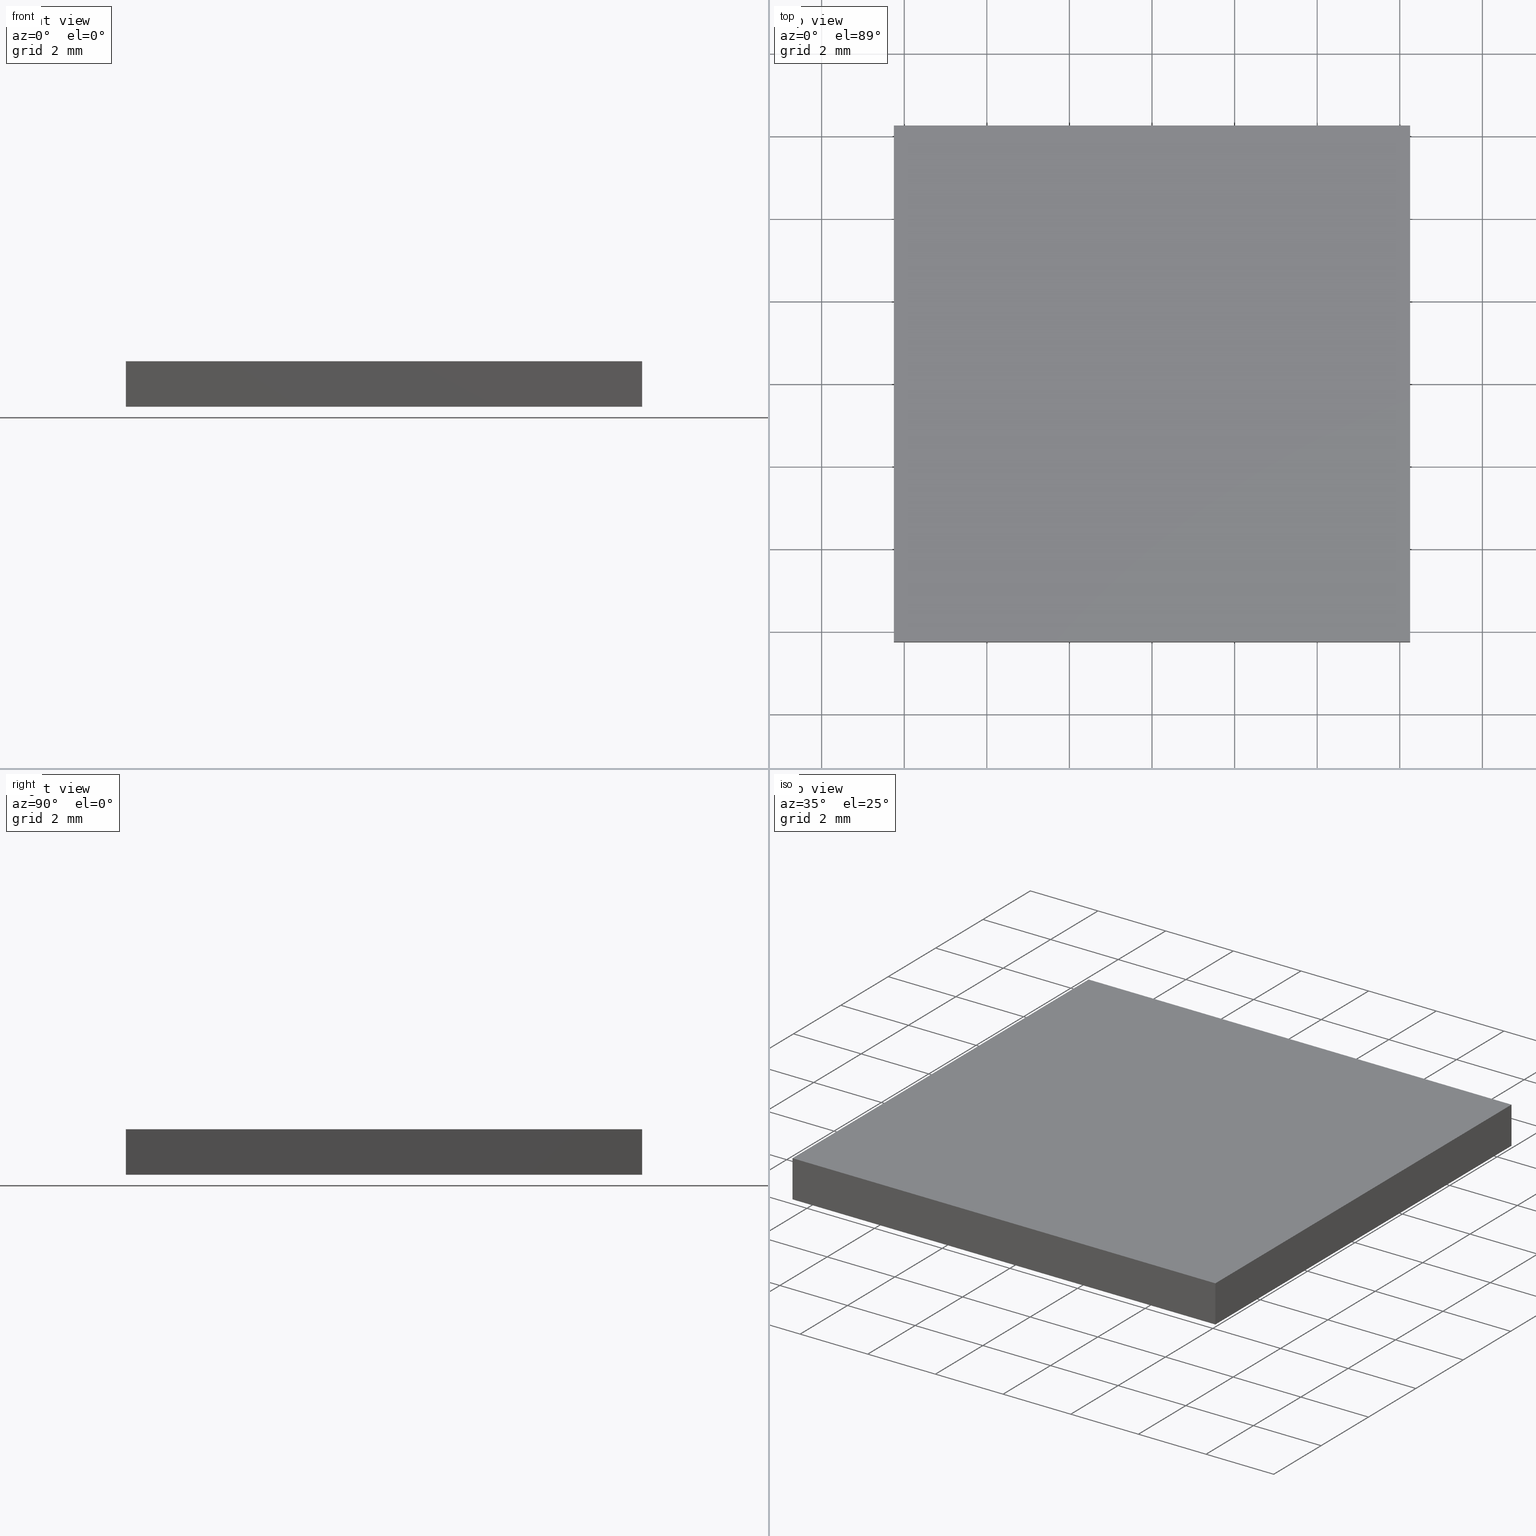
[diagram: canonical four-view strip — front | top / right | iso, engineering-drawing reading convention]
A machine part, canonical four-view strip (front | top / right | iso — engineering-drawing reading convention). The complete STEP part file that produces these views, byte-faithful:
ISO-10303-21;
HEADER;
FILE_DESCRIPTION (( 'STEP AP203' ),
    '1' );
FILE_NAME ('348501.STEP',
    '2019-07-31T06:59:30',
    ( '' ),
    ( '' ),
    'SwSTEP 2.0',
    'SolidWorks 2016',
    '' );
FILE_SCHEMA (( 'CONFIG_CONTROL_DESIGN' ));
ENDSEC;

DATA;
#1 = FACE_OUTER_BOUND ( 'NONE', #276, .T. ) ;
#2 = VECTOR ( 'NONE', #17, 1000.000000000000000 ) ;
#3 = AXIS2_PLACEMENT_3D ( 'NONE', #179, #279, #209 ) ;
#4 = CC_DESIGN_DATE_AND_TIME_ASSIGNMENT ( #244, #163, ( #200 ) ) ;
#5 = APPROVAL_PERSON_ORGANIZATION ( #270, #192, #220 ) ;
#6 = CC_DESIGN_DATE_AND_TIME_ASSIGNMENT ( #52, #41, ( #212 ) ) ;
#7 = ORIENTED_EDGE ( 'NONE', *, *, #288, .T. ) ;
#8 = APPROVAL_DATE_TIME ( #183, #192 ) ;
#9 = EDGE_CURVE ( 'NONE', #221, #224, #269, .T. ) ;
#10 = APPROVAL_DATE_TIME ( #96, #248 ) ;
#11 = VECTOR ( 'NONE', #130, 1000.000000000000000 ) ;
#12 = DIRECTION ( 'NONE',  ( -1.000000000000000000, 0.0000000000000000000, -0.0000000000000000000 ) ) ;
#13 = DIRECTION ( 'NONE',  ( -1.000000000000000000, 0.0000000000000000000, -0.0000000000000000000 ) ) ;
#14 = DIRECTION ( 'NONE',  ( 1.000000000000000000, 0.0000000000000000000, 0.0000000000000000000 ) ) ;
#15 = PERSON_AND_ORGANIZATION ( #256, #304 ) ;
#16 = DIRECTION ( 'NONE',  ( 1.000000000000000000, 0.0000000000000000000, 0.0000000000000000000 ) ) ;
#17 = DIRECTION ( 'NONE',  ( 1.000000000000000000, 0.0000000000000000000, 0.0000000000000000000 ) ) ;
#18 = CARTESIAN_POINT ( 'NONE',  ( 6.250000000000001800, -6.249999999999999100, 0.0000000000000000000 ) ) ;
#19 = CALENDAR_DATE ( 2019, 31, 7 ) ;
#20 = PERSON_AND_ORGANIZATION_ROLE ( 'creator' ) ;
#21 = ORIENTED_EDGE ( 'NONE', *, *, #288, .F. ) ;
#22 = MECHANICAL_CONTEXT ( 'NONE', #114, 'mechanical' ) ;
#23 = CC_DESIGN_SECURITY_CLASSIFICATION ( #200, ( #129 ) ) ;
#24 = APPLICATION_PROTOCOL_DEFINITION ( 'international standard', 'config_control_design', 1994, #162 ) ;
#25 = LINE ( 'NONE', #102, #214 ) ;
#26 = CALENDAR_DATE ( 2019, 31, 7 ) ;
#27 = LOCAL_TIME ( 14, 59, 30.00000000000000000, #43 ) ;
#28 = APPROVAL ( #93, 'δָ��' ) ;
#29 = DIRECTION ( 'NONE',  ( 0.0000000000000000000, 1.000000000000000000, 0.0000000000000000000 ) ) ;
#30 = VERTEX_POINT ( 'NONE', #274 ) ;
#31 = DIRECTION ( 'NONE',  ( -0.0000000000000000000, -0.0000000000000000000, -1.000000000000000000 ) ) ;
#32 = SHAPE_DEFINITION_REPRESENTATION ( #242, #42 ) ;
#33 = CC_DESIGN_PERSON_AND_ORGANIZATION_ASSIGNMENT ( #196, #264, ( #129 ) ) ;
#34 = FACE_OUTER_BOUND ( 'NONE', #72, .T. ) ;
#35 = PRODUCT ( '348501', '348501', '', ( #239 ) ) ;
#36 = CARTESIAN_POINT ( 'NONE',  ( -6.249999999999998200, 6.250000000000000900, 0.0000000000000000000 ) ) ;
#37 = PRODUCT_DEFINITION_FORMATION_WITH_SPECIFIED_SOURCE ( '�κ�', '', #131, .NOT_KNOWN. ) ;
#38 = LOCAL_TIME ( 14, 59, 30.00000000000000000, #261 ) ;
#39 = APPROVAL_ROLE ( '' ) ;
#40 = ORIENTED_EDGE ( 'NONE', *, *, #222, .F. ) ;
#41 = DATE_TIME_ROLE ( 'creation_date' ) ;
#42 = ADVANCED_BREP_SHAPE_REPRESENTATION ( '348501', ( #66, #228 ), #140 ) ;
#43 = COORDINATED_UNIVERSAL_TIME_OFFSET ( 8, 0, .AHEAD. ) ;
#44 = APPLICATION_PROTOCOL_DEFINITION ( 'international standard', 'config_control_design', 1994, #112 ) ;
#45 = EDGE_CURVE ( 'NONE', #91, #224, #117, .T. ) ;
#46 = EDGE_LOOP ( 'NONE', ( #149, #207, #247, #236 ) ) ;
#47 = PRODUCT_RELATED_PRODUCT_CATEGORY ( 'detail', '', ( #35 ) ) ;
#48 = LOCAL_TIME ( 14, 59, 30.00000000000000000, #59 ) ;
#49 = LOCAL_TIME ( 14, 59, 30.00000000000000000, #249 ) ;
#50 = ORIENTED_EDGE ( 'NONE', *, *, #9, .T. ) ;
#51 = CARTESIAN_POINT ( 'NONE',  ( -6.249999999999998200, 6.250000000000000900, 1.100000000000000100 ) ) ;
#52 = DATE_AND_TIME ( #134, #73 ) ;
#53 = VECTOR ( 'NONE', #280, 1000.000000000000000 ) ;
#54 = CLOSED_SHELL ( 'NONE', ( #197, #80, #125, #171, #315, #175 ) ) ;
#55 = CARTESIAN_POINT ( 'NONE',  ( -6.249999999999998200, -6.249999999999999100, 0.0000000000000000000 ) ) ;
#56 = CC_DESIGN_PERSON_AND_ORGANIZATION_ASSIGNMENT ( #15, #218, ( #37 ) ) ;
#57 = DIRECTION ( 'NONE',  ( -0.0000000000000000000, -0.0000000000000000000, -1.000000000000000000 ) ) ;
#58 = DIRECTION ( 'NONE',  ( 0.0000000000000000000, 0.0000000000000000000, -1.000000000000000000 ) ) ;
#59 = COORDINATED_UNIVERSAL_TIME_OFFSET ( 8, 0, .AHEAD. ) ;
#60 = DESIGN_CONTEXT ( 'detailed design', #112, 'design' ) ;
#61 = PLANE ( 'NONE',  #298 ) ;
#62 = VECTOR ( 'NONE', #57, 1000.000000000000000 ) ;
#63 = EDGE_CURVE ( 'NONE', #224, #133, #25, .T. ) ;
#64 = CARTESIAN_POINT ( 'NONE',  ( -6.249999999999998200, -6.249999999999999100, 1.100000000000000100 ) ) ;
#65 = APPROVAL_ROLE ( '' ) ;
#66 = MANIFOLD_SOLID_BREP ( '͹̨-����1', #54 ) ;
#67 = PERSON_AND_ORGANIZATION ( #256, #304 ) ;
#68 = VECTOR ( 'NONE', #31, 1000.000000000000000 ) ;
#69 = DATE_TIME_ROLE ( 'classification_date' ) ;
#70 = VERTEX_POINT ( 'NONE', #51 ) ;
#71 = CC_DESIGN_DATE_AND_TIME_ASSIGNMENT ( #230, #165, ( #104 ) ) ;
#72 = EDGE_LOOP ( 'NONE', ( #123, #103, #146, #190 ) ) ;
#73 = LOCAL_TIME ( 14, 59, 30.00000000000000000, #308 ) ;
#74 = VECTOR ( 'NONE', #186, 1000.000000000000000 ) ;
#75 = ORIENTED_EDGE ( 'NONE', *, *, #9, .F. ) ;
#76 = PRODUCT_RELATED_PRODUCT_CATEGORY ( 'detail', '', ( #131 ) ) ;
#77 = APPROVAL_PERSON_ORGANIZATION ( #240, #100, #65 ) ;
#78 = ORIENTED_EDGE ( 'NONE', *, *, #195, .F. ) ;
#79 = FACE_OUTER_BOUND ( 'NONE', #46, .T. ) ;
#80 = ADVANCED_FACE ( 'NONE', ( #136 ), #204, .F. ) ;
#81 = LINE ( 'NONE', #303, #11 ) ;
#82 = ORIENTED_EDGE ( 'NONE', *, *, #45, .T. ) ;
#83 = CARTESIAN_POINT ( 'NONE',  ( 6.250000000000001800, -6.249999999999999100, 1.100000000000000100 ) ) ;
#84 = CARTESIAN_POINT ( 'NONE',  ( -6.249999999999998200, -6.249999999999999100, 1.100000000000000100 ) ) ;
#85 = APPROVAL_DATE_TIME ( #99, #147 ) ;
#86 = CARTESIAN_POINT ( 'NONE',  ( -6.249999999999998200, -6.249999999999999100, 1.100000000000000100 ) ) ;
#87 = CARTESIAN_POINT ( 'NONE',  ( -6.249999999999998200, 6.250000000000000900, 1.100000000000000100 ) ) ;
#88 = VECTOR ( 'NONE', #150, 1000.000000000000000 ) ;
#89 = DIRECTION ( 'NONE',  ( -0.0000000000000000000, -1.000000000000000000, -0.0000000000000000000 ) ) ;
#90 = PERSON_AND_ORGANIZATION ( #256, #304 ) ;
#91 = VERTEX_POINT ( 'NONE', #127 ) ;
#92 = CC_DESIGN_PERSON_AND_ORGANIZATION_ASSIGNMENT ( #216, #135, ( #131 ) ) ;
#93 = APPROVAL_STATUS ( 'not_yet_approved' ) ;
#94 = PERSON_AND_ORGANIZATION_ROLE ( 'design_supplier' ) ;
#95 = APPROVAL_PERSON_ORGANIZATION ( #297, #151, #263 ) ;
#96 = DATE_AND_TIME ( #111, #38 ) ;
#97 = VECTOR ( 'NONE', #29, 1000.000000000000000 ) ;
#98 = DESIGN_CONTEXT ( 'detailed design', #162, 'design' ) ;
#99 = DATE_AND_TIME ( #294, #48 ) ;
#100 = APPROVAL ( #191, 'δָ��' ) ;
#101 = LOCAL_TIME ( 14, 59, 30.00000000000000000, #265 ) ;
#102 = CARTESIAN_POINT ( 'NONE',  ( -6.249999999999998200, 6.250000000000000900, 0.0000000000000000000 ) ) ;
#103 = ORIENTED_EDGE ( 'NONE', *, *, #189, .F. ) ;
#104 = PRODUCT_DEFINITION ( 'δ֪', '', #37, #98 ) ;
#105 = DIRECTION ( 'NONE',  ( 1.000000000000000000, 0.0000000000000000000, 0.0000000000000000000 ) ) ;
#106 = PLANE ( 'NONE',  #275 ) ;
#107 = CC_DESIGN_APPROVAL ( #100, ( #37 ) ) ;
#108 =( LENGTH_UNIT ( ) NAMED_UNIT ( * ) SI_UNIT ( .MILLI., .METRE. ) );
#109 = CALENDAR_DATE ( 2019, 31, 7 ) ;
#110 =( NAMED_UNIT ( * ) PLANE_ANGLE_UNIT ( ) SI_UNIT ( $, .RADIAN. ) );
#111 = CALENDAR_DATE ( 2019, 31, 7 ) ;
#112 = APPLICATION_CONTEXT ( 'configuration controlled 3d designs of mechanical parts and assemblies' ) ;
#113 = PERSON_AND_ORGANIZATION_ROLE ( 'creator' ) ;
#114 = APPLICATION_CONTEXT ( 'configuration controlled 3d designs of mechanical parts and assemblies' ) ;
#115 = APPROVAL_DATE_TIME ( #223, #151 ) ;
#116 = CC_DESIGN_PERSON_AND_ORGANIZATION_ASSIGNMENT ( #159, #217, ( #121 ) ) ;
#117 = LINE ( 'NONE', #202, #88 ) ;
#118 = COORDINATED_UNIVERSAL_TIME_OFFSET ( 8, 0, .AHEAD. ) ;
#119 = LINE ( 'NONE', #153, #53 ) ;
#120 = ORIENTED_EDGE ( 'NONE', *, *, #63, .F. ) ;
#121 = SECURITY_CLASSIFICATION ( '', '', #237 ) ;
#122 = COORDINATED_UNIVERSAL_TIME_OFFSET ( 8, 0, .AHEAD. ) ;
#123 = ORIENTED_EDGE ( 'NONE', *, *, #195, .T. ) ;
#124 = CARTESIAN_POINT ( 'NONE',  ( 6.250000000000001800, -6.249999999999999100, 0.0000000000000000000 ) ) ;
#125 = ADVANCED_FACE ( 'NONE', ( #34 ), #232, .F. ) ;
#126 = PERSON_AND_ORGANIZATION ( #256, #304 ) ;
#127 = CARTESIAN_POINT ( 'NONE',  ( 6.250000000000001800, 6.250000000000000900, 1.100000000000000100 ) ) ;
#128 = DIRECTION ( 'NONE',  ( 0.0000000000000000000, -0.0000000000000000000, 1.000000000000000000 ) ) ;
#129 = PRODUCT_DEFINITION_FORMATION_WITH_SPECIFIED_SOURCE ( '�κ�', '', #35, .NOT_KNOWN. ) ;
#130 = DIRECTION ( 'NONE',  ( -0.0000000000000000000, -0.0000000000000000000, -1.000000000000000000 ) ) ;
#131 = PRODUCT ( '348501', '348501', '', ( #22 ) ) ;
#132 = CARTESIAN_POINT ( 'NONE',  ( -6.249999999999998200, -6.249999999999999100, 0.0000000000000000000 ) ) ;
#133 = VERTEX_POINT ( 'NONE', #36 ) ;
#134 = CALENDAR_DATE ( 2019, 31, 7 ) ;
#135 = PERSON_AND_ORGANIZATION_ROLE ( 'design_owner' ) ;
#136 = FACE_OUTER_BOUND ( 'NONE', #313, .T. ) ;
#137 = PERSON_AND_ORGANIZATION_ROLE ( 'design_supplier' ) ;
#138 = CC_DESIGN_DATE_AND_TIME_ASSIGNMENT ( #170, #69, ( #121 ) ) ;
#139 = ORIENTED_EDGE ( 'NONE', *, *, #208, .F. ) ;
#140 =( GEOMETRIC_REPRESENTATION_CONTEXT ( 3 ) GLOBAL_UNCERTAINTY_ASSIGNED_CONTEXT ( ( #178 ) ) GLOBAL_UNIT_ASSIGNED_CONTEXT ( ( #108, #110, #277 ) ) REPRESENTATION_CONTEXT ( 'NONE', 'WORKASPACE' ) );
#141 = CALENDAR_DATE ( 2019, 31, 7 ) ;
#142 = LINE ( 'NONE', #64, #2 ) ;
#143 = PRODUCT_DEFINITION_SHAPE ( 'NONE', 'NONE',  #104 ) ;
#144 = PERSON_AND_ORGANIZATION ( #256, #304 ) ;
#145 = CC_DESIGN_APPROVAL ( #28, ( #129 ) ) ;
#146 = ORIENTED_EDGE ( 'NONE', *, *, #245, .F. ) ;
#147 = APPROVAL ( #306, 'δָ��' ) ;
#148 = APPROVAL_PERSON_ORGANIZATION ( #174, #248, #39 ) ;
#149 = ORIENTED_EDGE ( 'NONE', *, *, #208, .T. ) ;
#150 = DIRECTION ( 'NONE',  ( -0.0000000000000000000, -0.0000000000000000000, -1.000000000000000000 ) ) ;
#151 = APPROVAL ( #290, 'δָ��' ) ;
#152 = PLANE ( 'NONE',  #251 ) ;
#153 = CARTESIAN_POINT ( 'NONE',  ( 6.250000000000001800, -6.249999999999999100, 1.100000000000000100 ) ) ;
#154 = CC_DESIGN_PERSON_AND_ORGANIZATION_ASSIGNMENT ( #219, #286, ( #35 ) ) ;
#155 = VECTOR ( 'NONE', #282, 1000.000000000000000 ) ;
#156 = DIRECTION ( 'NONE',  ( 0.0000000000000000000, 0.0000000000000000000, 1.000000000000000000 ) ) ;
#157 = CARTESIAN_POINT ( 'NONE',  ( -6.249999999999998200, 6.250000000000000900, 1.100000000000000100 ) ) ;
#158 = DIRECTION ( 'NONE',  ( 1.000000000000000000, 0.0000000000000000000, 0.0000000000000000000 ) ) ;
#159 = PERSON_AND_ORGANIZATION ( #256, #304 ) ;
#160 = AXIS2_PLACEMENT_3D ( 'NONE', #231, #250, #105 ) ;
#161 = ORIENTED_EDGE ( 'NONE', *, *, #238, .F. ) ;
#162 = APPLICATION_CONTEXT ( 'configuration controlled 3d designs of mechanical parts and assemblies' ) ;
#163 = DATE_TIME_ROLE ( 'classification_date' ) ;
#164 = APPROVAL_PERSON_ORGANIZATION ( #144, #147, #262 ) ;
#165 = DATE_TIME_ROLE ( 'creation_date' ) ;
#166 = CC_DESIGN_PERSON_AND_ORGANIZATION_ASSIGNMENT ( #254, #94, ( #37 ) ) ;
#167 = CALENDAR_DATE ( 2019, 31, 7 ) ;
#168 = LINE ( 'NONE', #87, #155 ) ;
#169 = AXIS2_PLACEMENT_3D ( 'NONE', #86, #14, #58 ) ;
#170 = DATE_AND_TIME ( #141, #292 ) ;
#171 = ADVANCED_FACE ( 'NONE', ( #227 ), #234, .F. ) ;
#172 = CC_DESIGN_PERSON_AND_ORGANIZATION_ASSIGNMENT ( #90, #20, ( #104 ) ) ;
#173 = COORDINATED_UNIVERSAL_TIME_OFFSET ( 8, 0, .AHEAD. ) ;
#174 = PERSON_AND_ORGANIZATION ( #256, #304 ) ;
#175 = ADVANCED_FACE ( 'NONE', ( #176 ), #106, .T. ) ;
#176 = FACE_OUTER_BOUND ( 'NONE', #258, .T. ) ;
#177 = EDGE_CURVE ( 'NONE', #91, #70, #168, .T. ) ;
#178 = UNCERTAINTY_MEASURE_WITH_UNIT (LENGTH_MEASURE( 1.000000000000000100E-005 ), #108, 'distance_accuracy_value', 'NONE');
#179 = CARTESIAN_POINT ( 'NONE',  ( -6.249999999999998200, 6.250000000000000900, 1.100000000000000100 ) ) ;
#180 = CARTESIAN_POINT ( 'NONE',  ( 6.250000000000001800, 6.250000000000000900, 0.0000000000000000000 ) ) ;
#181 = CC_DESIGN_APPROVAL ( #248, ( #200 ) ) ;
#182 = DIRECTION ( 'NONE',  ( 0.0000000000000000000, 1.000000000000000000, 0.0000000000000000000 ) ) ;
#183 = DATE_AND_TIME ( #312, #193 ) ;
#184 = CARTESIAN_POINT ( 'NONE',  ( -6.249999999999998200, -6.249999999999999100, 0.0000000000000000000 ) ) ;
#185 = CC_DESIGN_APPROVAL ( #147, ( #121 ) ) ;
#186 = DIRECTION ( 'NONE',  ( -0.0000000000000000000, -1.000000000000000000, -0.0000000000000000000 ) ) ;
#187 = APPLICATION_PROTOCOL_DEFINITION ( 'international standard', 'config_control_design', 1994, #259 ) ;
#188 = APPROVAL_DATE_TIME ( #267, #28 ) ;
#189 = EDGE_CURVE ( 'NONE', #30, #194, #252, .T. ) ;
#190 = ORIENTED_EDGE ( 'NONE', *, *, #238, .T. ) ;
#191 = APPROVAL_STATUS ( 'not_yet_approved' ) ;
#192 = APPROVAL ( #287, 'δָ��' ) ;
#193 = LOCAL_TIME ( 14, 59, 30.00000000000000000, #122 ) ;
#194 = VERTEX_POINT ( 'NONE', #132 ) ;
#195 = EDGE_CURVE ( 'NONE', #133, #194, #198, .T. ) ;
#196 = PERSON_AND_ORGANIZATION ( #256, #304 ) ;
#197 = ADVANCED_FACE ( 'NONE', ( #1 ), #152, .F. ) ;
#198 = LINE ( 'NONE', #55, #74 ) ;
#199 = EDGE_LOOP ( 'NONE', ( #7, #40, #201, #272 ) ) ;
#200 = SECURITY_CLASSIFICATION ( '', '', #311 ) ;
#201 = ORIENTED_EDGE ( 'NONE', *, *, #283, .F. ) ;
#202 = CARTESIAN_POINT ( 'NONE',  ( 6.250000000000001800, 6.250000000000000900, 1.100000000000000100 ) ) ;
#203 = PERSON_AND_ORGANIZATION ( #256, #304 ) ;
#204 = PLANE ( 'NONE',  #3 ) ;
#205 = DIRECTION ( 'NONE',  ( -1.000000000000000000, -0.0000000000000000000, -0.0000000000000000000 ) ) ;
#206 = LINE ( 'NONE', #157, #62 ) ;
#207 = ORIENTED_EDGE ( 'NONE', *, *, #177, .T. ) ;
#208 = EDGE_CURVE ( 'NONE', #229, #91, #119, .T. ) ;
#209 = DIRECTION ( 'NONE',  ( 0.0000000000000000000, -0.0000000000000000000, -1.000000000000000000 ) ) ;
#210 = DIRECTION ( 'NONE',  ( -1.000000000000000000, 0.0000000000000000000, 0.0000000000000000000 ) ) ;
#211 = COORDINATED_UNIVERSAL_TIME_OFFSET ( 8, 0, .AHEAD. ) ;
#212 = PRODUCT_DEFINITION ( 'δ֪', '', #129, #60 ) ;
#213 = DIRECTION ( 'NONE',  ( 0.0000000000000000000, 0.0000000000000000000, -1.000000000000000000 ) ) ;
#214 = VECTOR ( 'NONE', #205, 1000.000000000000000 ) ;
#215 = DIRECTION ( 'NONE',  ( 0.0000000000000000000, 0.0000000000000000000, 1.000000000000000000 ) ) ;
#216 = PERSON_AND_ORGANIZATION ( #256, #304 ) ;
#217 = PERSON_AND_ORGANIZATION_ROLE ( 'classification_officer' ) ;
#218 = PERSON_AND_ORGANIZATION_ROLE ( 'creator' ) ;
#219 = PERSON_AND_ORGANIZATION ( #256, #304 ) ;
#220 = APPROVAL_ROLE ( '' ) ;
#221 = VERTEX_POINT ( 'NONE', #18 ) ;
#222 = EDGE_CURVE ( 'NONE', #229, #221, #81, .T. ) ;
#223 = DATE_AND_TIME ( #167, #284 ) ;
#224 = VERTEX_POINT ( 'NONE', #180 ) ;
#225 = AXIS2_PLACEMENT_3D ( 'NONE', #84, #182, #128 ) ;
#226 = CC_DESIGN_APPROVAL ( #192, ( #212 ) ) ;
#227 = FACE_OUTER_BOUND ( 'NONE', #199, .T. ) ;
#228 = AXIS2_PLACEMENT_3D ( 'NONE', #301, #156, #16 ) ;
#229 = VERTEX_POINT ( 'NONE', #255 ) ;
#230 = DATE_AND_TIME ( #109, #101 ) ;
#231 = CARTESIAN_POINT ( 'NONE',  ( 0.0000000000000000000, 0.0000000000000000000, 0.0000000000000000000 ) ) ;
#232 = PLANE ( 'NONE',  #169 ) ;
#233 = CARTESIAN_POINT ( 'NONE',  ( -6.249999999999998200, -6.249999999999999100, 1.100000000000000100 ) ) ;
#234 = PLANE ( 'NONE',  #225 ) ;
#235 = LINE ( 'NONE', #184, #243 ) ;
#236 = ORIENTED_EDGE ( 'NONE', *, *, #283, .T. ) ;
#237 = SECURITY_CLASSIFICATION_LEVEL ( 'unclassified' ) ;
#238 = EDGE_CURVE ( 'NONE', #70, #133, #206, .T. ) ;
#239 = MECHANICAL_CONTEXT ( 'NONE', #259, 'mechanical' ) ;
#240 = PERSON_AND_ORGANIZATION ( #256, #304 ) ;
#241 = CC_DESIGN_PERSON_AND_ORGANIZATION_ASSIGNMENT ( #314, #113, ( #212 ) ) ;
#242 = PRODUCT_DEFINITION_SHAPE ( 'NONE', 'NONE',  #212 ) ;
#243 = VECTOR ( 'NONE', #158, 1000.000000000000000 ) ;
#244 = DATE_AND_TIME ( #268, #49 ) ;
#245 = EDGE_CURVE ( 'NONE', #70, #30, #281, .T. ) ;
#246 = APPROVAL_PERSON_ORGANIZATION ( #203, #28, #309 ) ;
#247 = ORIENTED_EDGE ( 'NONE', *, *, #245, .T. ) ;
#248 = APPROVAL ( #289, 'δָ��' ) ;
#249 = COORDINATED_UNIVERSAL_TIME_OFFSET ( 8, 0, .AHEAD. ) ;
#250 = DIRECTION ( 'NONE',  ( 0.0000000000000000000, 0.0000000000000000000, 1.000000000000000000 ) ) ;
#251 = AXIS2_PLACEMENT_3D ( 'NONE', #83, #210, #215 ) ;
#252 = LINE ( 'NONE', #300, #68 ) ;
#253 = DIRECTION ( 'NONE',  ( 0.0000000000000000000, 0.0000000000000000000, -1.000000000000000000 ) ) ;
#254 = PERSON_AND_ORGANIZATION ( #256, #304 ) ;
#255 = CARTESIAN_POINT ( 'NONE',  ( 6.250000000000001800, -6.249999999999999100, 1.100000000000000100 ) ) ;
#256 = PERSON ( 'δָ��', 'δָ��', 'δָ��', ('δָ��'), ('δָ��'), ('δָ��') ) ;
#257 = CARTESIAN_POINT ( 'NONE',  ( 0.0000000000000000000, 0.0000000000000000000, 1.100000000000000100 ) ) ;
#258 = EDGE_LOOP ( 'NONE', ( #75, #21, #78, #120 ) ) ;
#259 = APPLICATION_CONTEXT ( 'configuration controlled 3d designs of mechanical parts and assemblies' ) ;
#260 = LOCAL_TIME ( 14, 59, 30.00000000000000000, #118 ) ;
#261 = COORDINATED_UNIVERSAL_TIME_OFFSET ( 8, 0, .AHEAD. ) ;
#262 = APPROVAL_ROLE ( '' ) ;
#263 = APPROVAL_ROLE ( '' ) ;
#264 = PERSON_AND_ORGANIZATION_ROLE ( 'creator' ) ;
#265 = COORDINATED_UNIVERSAL_TIME_OFFSET ( 8, 0, .AHEAD. ) ;
#266 = ORIENTED_EDGE ( 'NONE', *, *, #222, .T. ) ;
#267 = DATE_AND_TIME ( #19, #260 ) ;
#268 = CALENDAR_DATE ( 2019, 31, 7 ) ;
#269 = LINE ( 'NONE', #124, #97 ) ;
#270 = PERSON_AND_ORGANIZATION ( #256, #304 ) ;
#271 = VECTOR ( 'NONE', #89, 1000.000000000000000 ) ;
#272 = ORIENTED_EDGE ( 'NONE', *, *, #189, .T. ) ;
#273 = APPROVAL_DATE_TIME ( #278, #100 ) ;
#274 = CARTESIAN_POINT ( 'NONE',  ( -6.249999999999998200, -6.249999999999999100, 1.100000000000000100 ) ) ;
#275 = AXIS2_PLACEMENT_3D ( 'NONE', #305, #253, #13 ) ;
#276 = EDGE_LOOP ( 'NONE', ( #50, #310, #139, #266 ) ) ;
#277 =( NAMED_UNIT ( * ) SI_UNIT ( $, .STERADIAN. ) SOLID_ANGLE_UNIT ( ) );
#278 = DATE_AND_TIME ( #26, #27 ) ;
#279 = DIRECTION ( 'NONE',  ( 0.0000000000000000000, -1.000000000000000000, 0.0000000000000000000 ) ) ;
#280 = DIRECTION ( 'NONE',  ( 0.0000000000000000000, 1.000000000000000000, 0.0000000000000000000 ) ) ;
#281 = LINE ( 'NONE', #233, #271 ) ;
#282 = DIRECTION ( 'NONE',  ( -1.000000000000000000, -0.0000000000000000000, -0.0000000000000000000 ) ) ;
#283 = EDGE_CURVE ( 'NONE', #30, #229, #142, .T. ) ;
#284 = LOCAL_TIME ( 14, 59, 30.00000000000000000, #173 ) ;
#285 = PERSON_AND_ORGANIZATION_ROLE ( 'classification_officer' ) ;
#286 = PERSON_AND_ORGANIZATION_ROLE ( 'design_owner' ) ;
#287 = APPROVAL_STATUS ( 'not_yet_approved' ) ;
#288 = EDGE_CURVE ( 'NONE', #194, #221, #235, .T. ) ;
#289 = APPROVAL_STATUS ( 'not_yet_approved' ) ;
#290 = APPROVAL_STATUS ( 'not_yet_approved' ) ;
#291 = CC_DESIGN_APPROVAL ( #151, ( #104 ) ) ;
#292 = LOCAL_TIME ( 14, 59, 30.00000000000000000, #211 ) ;
#293 = ORIENTED_EDGE ( 'NONE', *, *, #177, .F. ) ;
#294 = CALENDAR_DATE ( 2019, 31, 7 ) ;
#295 = CC_DESIGN_PERSON_AND_ORGANIZATION_ASSIGNMENT ( #67, #285, ( #200 ) ) ;
#296 = ORIENTED_EDGE ( 'NONE', *, *, #63, .T. ) ;
#297 = PERSON_AND_ORGANIZATION ( #256, #304 ) ;
#298 = AXIS2_PLACEMENT_3D ( 'NONE', #257, #213, #12 ) ;
#299 = CC_DESIGN_PERSON_AND_ORGANIZATION_ASSIGNMENT ( #126, #137, ( #129 ) ) ;
#300 = CARTESIAN_POINT ( 'NONE',  ( -6.249999999999998200, -6.249999999999999100, 1.100000000000000100 ) ) ;
#301 = CARTESIAN_POINT ( 'NONE',  ( 0.0000000000000000000, 0.0000000000000000000, 0.0000000000000000000 ) ) ;
#302 = CC_DESIGN_SECURITY_CLASSIFICATION ( #121, ( #37 ) ) ;
#303 = CARTESIAN_POINT ( 'NONE',  ( 6.250000000000001800, -6.249999999999999100, 1.100000000000000100 ) ) ;
#304 = ORGANIZATION ( 'δָ��', 'δָ��', '' ) ;
#305 = CARTESIAN_POINT ( 'NONE',  ( 0.0000000000000000000, 0.0000000000000000000, 0.0000000000000000000 ) ) ;
#306 = APPROVAL_STATUS ( 'not_yet_approved' ) ;
#307 = APPLICATION_PROTOCOL_DEFINITION ( 'international standard', 'config_control_design', 1994, #114 ) ;
#308 = COORDINATED_UNIVERSAL_TIME_OFFSET ( 8, 0, .AHEAD. ) ;
#309 = APPROVAL_ROLE ( '' ) ;
#310 = ORIENTED_EDGE ( 'NONE', *, *, #45, .F. ) ;
#311 = SECURITY_CLASSIFICATION_LEVEL ( 'unclassified' ) ;
#312 = CALENDAR_DATE ( 2019, 31, 7 ) ;
#313 = EDGE_LOOP ( 'NONE', ( #296, #161, #293, #82 ) ) ;
#314 = PERSON_AND_ORGANIZATION ( #256, #304 ) ;
#315 = ADVANCED_FACE ( 'NONE', ( #79 ), #61, .F. ) ;
ENDSEC;
END-ISO-10303-21;
